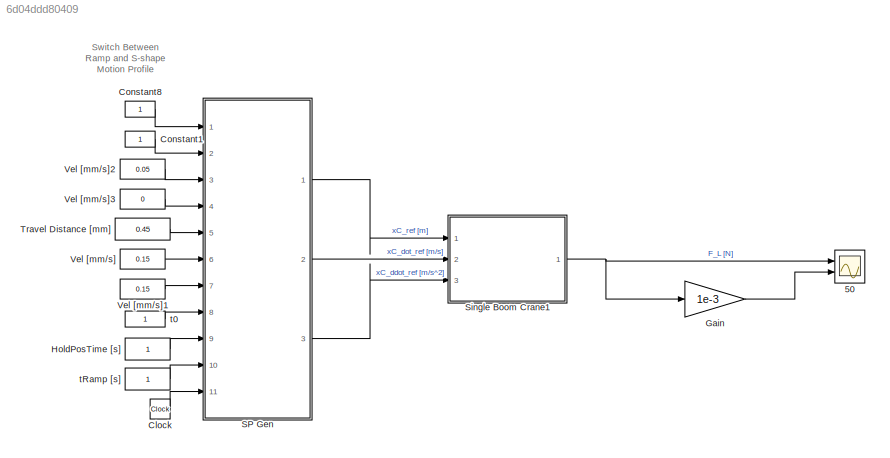
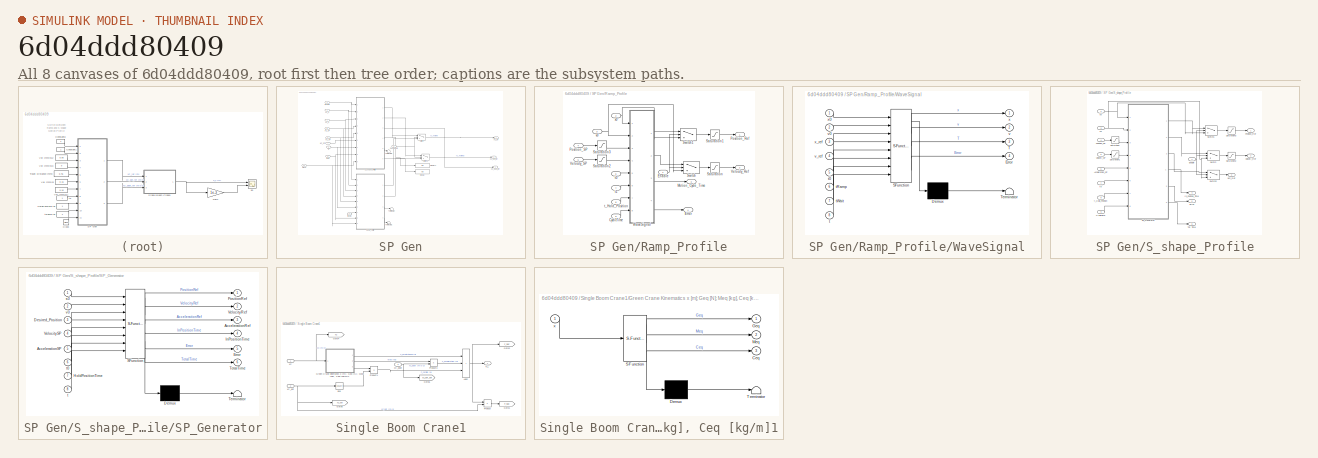
[diagram: thumbnail index - all 8 canvases of the model, root first then tree order]
MODEL slx_6d04ddd80409
KIND model
CONFIG AbsTol = auto
CONFIG EnableMultiTasking = on
CONFIG FixedStep = auto
CONFIG MaxStep = auto
CONFIG MinStep = auto
CONFIG RelTol = 1e-3
CONFIG SampleTimeConstraint = Unconstrained
CONFIG SolverName = ode23s
CONFIG StartTime = 0.0
CONFIG StopTime = 3
BLOCK [Scope] 50
  Floating = off
  NumInputPorts = 2
  Ports = [2]
  ScopeSpecificationString = Simulink.scopes.TimeScopeBlockCfg('CurrentConfiguration', extmgr.ConfigurationSet(extmgr.Configuration('Core','General UI',true,'FigureColor',[1 1 1]),extmgr.Configuration('Core','Source UI',true),extmgr.Configuration('Sources','WiredSimulink',true,'DataLoggingSaveFormat','StructureWithTime','DataLoggingDecimation','1','DataLoggingDecimateData',true),extmgr.Configuration('Visuals','Time Domain',tr...<+4093ch>
BLOCK [Clock] Clock
BLOCK [Constant] Constant1
  OutDataTypeStr = boolean
BLOCK [Constant] Constant8
  OutDataTypeStr = boolean
BLOCK [Gain] Gain
  Gain = 1e-3
  NameLocation = top
BLOCK [Constant] HoldPosTime [s]
BLOCK [SubSystem] SP Gen
  Ports = [11, 3]
  RequestExecContextInheritance = off
BLOCK [Inport] SP Gen/Clock
  Port = 11
BLOCK [Display] SP Gen/Display
  Decimation = 1
  Ports = [1]
BLOCK [Display] SP Gen/Display1
  Decimation = 1
  Ports = [1]
BLOCK [Inport] SP Gen/Enable
BLOCK [SubSystem] SP Gen/Ramp_Profile
  Ports = [9, 4]
  RequestExecContextInheritance = off
  TreatAsAtomicUnit = on
  VariantControl = Ramp_Profile
BLOCK [Inport] SP Gen/Ramp_Profile/CyclicTime
  Port = 9
BLOCK [Inport] SP Gen/Ramp_Profile/Enable
  OutDataTypeStr = boolean
BLOCK [Outport] SP Gen/Ramp_Profile/Error
  Port = 4
  VectorParamsAs1DForOutWhenUnconnected = off
BLOCK [Outport] SP Gen/Ramp_Profile/Motion_Cycle_Time
  Port = 3
  VectorParamsAs1DForOutWhenUnconnected = off
BLOCK [Outport] SP Gen/Ramp_Profile/Position_Ref
  VectorParamsAs1DForOutWhenUnconnected = off
BLOCK [Inport] SP Gen/Ramp_Profile/Position_SP
  Port = 4
BLOCK [Saturate] SP Gen/Ramp_Profile/Saturation
  LowerLimit = -150
  UpperLimit = 150
BLOCK [Saturate] SP Gen/Ramp_Profile/Saturation1
  LowerLimit = 0
  UpperLimit = 500
BLOCK [Saturate] SP Gen/Ramp_Profile/Saturation2
  LowerLimit = 0
  UpperLimit = 150
BLOCK [Saturate] SP Gen/Ramp_Profile/Saturation3
  LowerLimit = 0
  UpperLimit = 500
BLOCK [Switch] SP Gen/Ramp_Profile/Switch
  Criteria = u2 > Threshold
  InputSameDT = off
  SaturateOnIntegerOverflow = off
BLOCK [Switch] SP Gen/Ramp_Profile/Switch1
  Criteria = u2 > Threshold
  InputSameDT = off
  SaturateOnIntegerOverflow = off
BLOCK [Outport] SP Gen/Ramp_Profile/Velocity_Ref
  Port = 2
  VectorParamsAs1DForOutWhenUnconnected = off
BLOCK [Inport] SP Gen/Ramp_Profile/Velocity_SP
  Port = 5
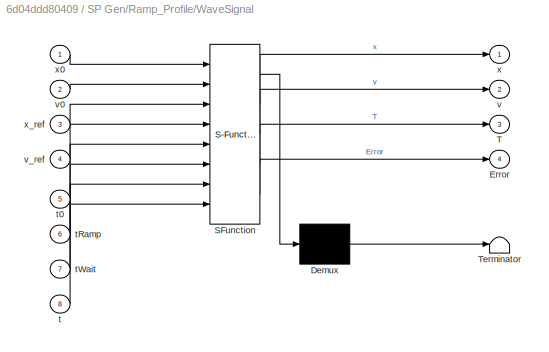
BLOCK [SubSystem] SP Gen/Ramp_Profile/WaveSignal
  ErrorFcn = Stateflow.Translate.translate
  PermitHierarchicalResolution = ExplicitOnly
  Ports = [8, 4]
  RequestExecContextInheritance = off
  SFBlockType = MATLAB Function
  TreatAsAtomicUnit = on
BLOCK [Demux] SP Gen/Ramp_Profile/WaveSignal/ Demux 
  Outputs = 1
  Ports = [1, 1]
BLOCK [S-Function] SP Gen/Ramp_Profile/WaveSignal/ SFunction 
  EnableBusSupport = off
  FunctionName = sf_sfun
  PortCounts = [8 5]
  Ports = [8, 5]
  SFcnIsStateOwnerBlock = off
  SFunctionDeploymentMode = off
  Tag = Stateflow S-Function 16
BLOCK [Terminator] SP Gen/Ramp_Profile/WaveSignal/ Terminator 
BLOCK [Outport] SP Gen/Ramp_Profile/WaveSignal/Error
  Port = 4
  VectorParamsAs1DForOutWhenUnconnected = off
BLOCK [Outport] SP Gen/Ramp_Profile/WaveSignal/T
  Port = 3
  VectorParamsAs1DForOutWhenUnconnected = off
BLOCK [Inport] SP Gen/Ramp_Profile/WaveSignal/t
  Port = 8
BLOCK [Inport] SP Gen/Ramp_Profile/WaveSignal/t0
  Port = 5
BLOCK [Inport] SP Gen/Ramp_Profile/WaveSignal/tRamp
  Port = 6
BLOCK [Inport] SP Gen/Ramp_Profile/WaveSignal/tWait
  Port = 7
BLOCK [Outport] SP Gen/Ramp_Profile/WaveSignal/v
  Port = 2
  VectorParamsAs1DForOutWhenUnconnected = off
BLOCK [Inport] SP Gen/Ramp_Profile/WaveSignal/v0
  Port = 2
BLOCK [Inport] SP Gen/Ramp_Profile/WaveSignal/v_ref
  Port = 4
BLOCK [Outport] SP Gen/Ramp_Profile/WaveSignal/x
  VectorParamsAs1DForOutWhenUnconnected = off
BLOCK [Inport] SP Gen/Ramp_Profile/WaveSignal/x0
BLOCK [Inport] SP Gen/Ramp_Profile/WaveSignal/x_ref
  Port = 3
BLOCK [Inport] SP Gen/Ramp_Profile/t0
  Port = 6
BLOCK [Inport] SP Gen/Ramp_Profile/t1
  Port = 7
BLOCK [Inport] SP Gen/Ramp_Profile/t_Hold_Position
  Port = 8
BLOCK [Inport] SP Gen/Ramp_Profile/v0
  Port = 3
BLOCK [Inport] SP Gen/Ramp_Profile/x0
  Port = 2
BLOCK [Inport] SP Gen/S-shape On
  Port = 2
BLOCK [SubSystem] SP Gen/S_shape_Profile
  Ports = [9, 6]
  RequestExecContextInheritance = off
  VariantControl = S_shape_Profile
BLOCK [Outport] SP Gen/S_shape_Profile/ In_Position_Time
  Port = 4
  VectorParamsAs1DForOutWhenUnconnected = off
BLOCK [Inport] SP Gen/S_shape_Profile/Acceleration_SP
  Port = 6
BLOCK [Inport] SP Gen/S_shape_Profile/CyclicTime
  Port = 9
BLOCK [Inport] SP Gen/S_shape_Profile/Enable
  OutDataTypeStr = boolean
BLOCK [Outport] SP Gen/S_shape_Profile/Error
  Port = 5
  VectorParamsAs1DForOutWhenUnconnected = off
BLOCK [Outport] SP Gen/S_shape_Profile/Position_Ref
  VectorParamsAs1DForOutWhenUnconnected = off
BLOCK [Inport] SP Gen/S_shape_Profile/Position_SP
  Port = 4
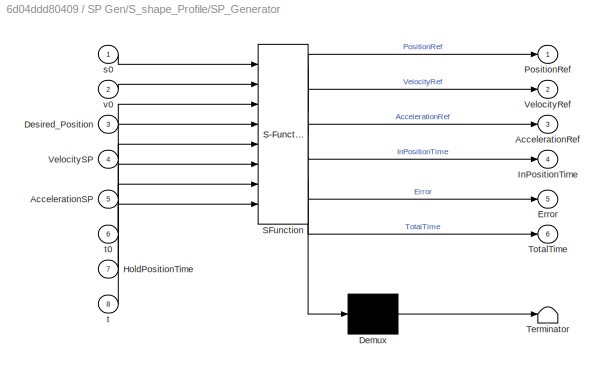
BLOCK [SubSystem] SP Gen/S_shape_Profile/SP_Generator
  ErrorFcn = Stateflow.Translate.translate
  PermitHierarchicalResolution = ExplicitOnly
  Ports = [8, 6]
  RequestExecContextInheritance = off
  SFBlockType = MATLAB Function
  TreatAsAtomicUnit = on
BLOCK [Demux] SP Gen/S_shape_Profile/SP_Generator/ Demux 
  Outputs = 1
  Ports = [1, 1]
BLOCK [S-Function] SP Gen/S_shape_Profile/SP_Generator/ SFunction 
  EnableBusSupport = off
  FunctionName = sf_sfun
  PortCounts = [8 7]
  Ports = [8, 7]
  SFcnIsStateOwnerBlock = off
  SFunctionDeploymentMode = off
  Tag = Stateflow S-Function 4
BLOCK [Terminator] SP Gen/S_shape_Profile/SP_Generator/ Terminator 
BLOCK [Outport] SP Gen/S_shape_Profile/SP_Generator/AccelerationRef
  Port = 3
  VectorParamsAs1DForOutWhenUnconnected = off
BLOCK [Inport] SP Gen/S_shape_Profile/SP_Generator/AccelerationSP
  Port = 5
BLOCK [Inport] SP Gen/S_shape_Profile/SP_Generator/Desired_Position
  Port = 3
BLOCK [Outport] SP Gen/S_shape_Profile/SP_Generator/Error
  Port = 5
  VectorParamsAs1DForOutWhenUnconnected = off
BLOCK [Inport] SP Gen/S_shape_Profile/SP_Generator/HoldPositionTime
  Port = 7
BLOCK [Outport] SP Gen/S_shape_Profile/SP_Generator/InPositionTime
  Port = 4
  VectorParamsAs1DForOutWhenUnconnected = off
BLOCK [Outport] SP Gen/S_shape_Profile/SP_Generator/PositionRef
  VectorParamsAs1DForOutWhenUnconnected = off
BLOCK [Outport] SP Gen/S_shape_Profile/SP_Generator/TotalTime
  Port = 6
  VectorParamsAs1DForOutWhenUnconnected = off
BLOCK [Outport] SP Gen/S_shape_Profile/SP_Generator/VelocityRef
  Port = 2
  VectorParamsAs1DForOutWhenUnconnected = off
BLOCK [Inport] SP Gen/S_shape_Profile/SP_Generator/VelocitySP
  Port = 4
BLOCK [Inport] SP Gen/S_shape_Profile/SP_Generator/s0
BLOCK [Inport] SP Gen/S_shape_Profile/SP_Generator/t
  Port = 8
BLOCK [Inport] SP Gen/S_shape_Profile/SP_Generator/t0
  Port = 6
BLOCK [Inport] SP Gen/S_shape_Profile/SP_Generator/v0
  Port = 2
BLOCK [Saturate] SP Gen/S_shape_Profile/Saturation
  LowerLimit = 0
  UpperLimit = 500
BLOCK [Saturate] SP Gen/S_shape_Profile/Saturation1
  LowerLimit = -150
  UpperLimit = 150
BLOCK [Saturate] SP Gen/S_shape_Profile/Saturation2
  LowerLimit = -150
  UpperLimit = 150
BLOCK [Saturate] SP Gen/S_shape_Profile/Saturation3
  LowerLimit = 0
  UpperLimit = 500
BLOCK [Switch] SP Gen/S_shape_Profile/Switch
  Criteria = u2 > Threshold
  InputSameDT = off
  SaturateOnIntegerOverflow = off
BLOCK [Switch] SP Gen/S_shape_Profile/Switch1
  Criteria = u2 > Threshold
  InputSameDT = off
  SaturateOnIntegerOverflow = off
BLOCK [Switch] SP Gen/S_shape_Profile/Switch2
  Criteria = u2 > Threshold
  InputSameDT = off
  SaturateOnIntegerOverflow = off
BLOCK [Outport] SP Gen/S_shape_Profile/Tot Time
  Port = 6
  VectorParamsAs1DForOutWhenUnconnected = off
BLOCK [Outport] SP Gen/S_shape_Profile/Velocity_Ref
  Port = 2
  VectorParamsAs1DForOutWhenUnconnected = off
BLOCK [Inport] SP Gen/S_shape_Profile/Velocity_SP
  Port = 5
BLOCK [Outport] SP Gen/S_shape_Profile/acc_Ref
  Port = 3
  VectorParamsAs1DForOutWhenUnconnected = off
BLOCK [Inport] SP Gen/S_shape_Profile/t0
  Port = 7
BLOCK [Inport] SP Gen/S_shape_Profile/t_Hold_Position
  Port = 8
BLOCK [Inport] SP Gen/S_shape_Profile/v0
  Port = 3
BLOCK [Inport] SP Gen/S_shape_Profile/x0
  Port = 2
BLOCK [Switch] SP Gen/Switch
  Criteria = u2 > Threshold
  InputSameDT = off
  SaturateOnIntegerOverflow = off
BLOCK [Switch] SP Gen/Switch1
  Criteria = u2 > Threshold
  InputSameDT = off
  SaturateOnIntegerOverflow = off
BLOCK [Terminator] SP Gen/Terminator
BLOCK [Terminator] SP Gen/Terminator1
BLOCK [Terminator] SP Gen/Terminator2
BLOCK [Inport] SP Gen/aC_SP
  Port = 7
BLOCK [Inport] SP Gen/t0
  Port = 8
BLOCK [Inport] SP Gen/tHold
  Port = 9
BLOCK [Inport] SP Gen/tRamp
  Port = 10
BLOCK [Inport] SP Gen/vC_0
  Port = 4
BLOCK [Inport] SP Gen/vC_SP
  Port = 6
BLOCK [Inport] SP Gen/xC_0
  Port = 3
BLOCK [Inport] SP Gen/xC_SP
  Port = 5
BLOCK [Outport] SP Gen/xC_ddot_ref 
  Port = 3
  VectorParamsAs1DForOutWhenUnconnected = off
BLOCK [Outport] SP Gen/xC_dot_ref
  Port = 2
  VectorParamsAs1DForOutWhenUnconnected = off
BLOCK [Outport] SP Gen/xC_ref
  VectorParamsAs1DForOutWhenUnconnected = off
BLOCK [SubSystem] Single Boom Crane1
  Ports = [3, 1]
  RequestExecContextInheritance = off
BLOCK [Sum] Single Boom Crane1/Add2
  IconShape = rectangular
  Inputs = +++
  Ports = [3, 1]
BLOCK [Math] Single Boom Crane1/Exp
  Operator = square
  Ports = [1, 1]
BLOCK [Outport] Single Boom Crane1/F_L
BLOCK [Goto] Single Boom Crane1/Goto1
  GotoTag = P_SBC
  TagVisibility = global
BLOCK [Goto] Single Boom Crane1/Goto2
  GotoTag = F_SBC
  TagVisibility = global
BLOCK [Goto] Single Boom Crane1/Goto4
  GotoTag = xC
  TagVisibility = global
BLOCK [Goto] Single Boom Crane1/Goto5
  GotoTag = xC_dot
  TagVisibility = global
BLOCK [Goto] Single Boom Crane1/Goto6
  GotoTag = xC_dot_dot
  TagVisibility = global
BLOCK [SubSystem] Single Boom Crane1/Green Crane Kinematics x [m]; Geq [N]; Meq [kg], Ceq [kg//m]1
  ErrorFcn = Stateflow.Translate.translate
  PermitHierarchicalResolution = ExplicitOnly
  Ports = [1, 3]
  RequestExecContextInheritance = off
  SFBlockType = MATLAB Function
  ShowPortLabels = SignalName
  TreatAsAtomicUnit = on
BLOCK [Demux] Single Boom Crane1/Green Crane Kinematics x [m]; Geq [N]; Meq [kg], Ceq [kg//m]1/ Demux 
  Outputs = 1
  Ports = [1, 1]
BLOCK [S-Function] Single Boom Crane1/Green Crane Kinematics x [m]; Geq [N]; Meq [kg], Ceq [kg//m]1/ SFunction 
  EnableBusSupport = off
  FunctionName = sf_sfun
  PortCounts = [1 4]
  Ports = [1, 4]
  SFcnIsStateOwnerBlock = off
  SFunctionDeploymentMode = off
  Tag = Stateflow S-Function 2
BLOCK [Terminator] Single Boom Crane1/Green Crane Kinematics x [m]; Geq [N]; Meq [kg], Ceq [kg//m]1/ Terminator 
BLOCK [Outport] Single Boom Crane1/Green Crane Kinematics x [m]; Geq [N]; Meq [kg], Ceq [kg//m]1/Ceq
  Port = 3
  VectorParamsAs1DForOutWhenUnconnected = off
BLOCK [Outport] Single Boom Crane1/Green Crane Kinematics x [m]; Geq [N]; Meq [kg], Ceq [kg//m]1/Geq
  VectorParamsAs1DForOutWhenUnconnected = off
BLOCK [Outport] Single Boom Crane1/Green Crane Kinematics x [m]; Geq [N]; Meq [kg], Ceq [kg//m]1/Meq
  Port = 2
  VectorParamsAs1DForOutWhenUnconnected = off
BLOCK [Inport] Single Boom Crane1/Green Crane Kinematics x [m]; Geq [N]; Meq [kg], Ceq [kg//m]1/x
BLOCK [Product] Single Boom Crane1/Product
  Ports = [2, 1]
BLOCK [Product] Single Boom Crane1/Product1
  Ports = [2, 1]
BLOCK [Product] Single Boom Crane1/Product3
  Ports = [2, 1]
BLOCK [Inport] Single Boom Crane1/xC
BLOCK [Inport] Single Boom Crane1/xC_ddot 
  Port = 3
BLOCK [Inport] Single Boom Crane1/xC_dot
  Port = 2
BLOCK [Constant] Travel Distance [mm]
  Value = 0.45
BLOCK [Constant] Vel [mm//s]
  Value = 0.15
BLOCK [Constant] Vel [mm//s]1
  Value = 0.15
BLOCK [Constant] Vel [mm//s]2
  Value = 0.05
BLOCK [Constant] Vel [mm//s]3
  Value = 0
BLOCK [Constant] t0
BLOCK [Constant] tRamp [s]
ANNOTATION (root): Switch Between Ramp and S-shape Motion Profile
LINE Clock:1 -> SP Gen:11
LINE Constant1:1 -> SP Gen:2
LINE Constant8:1 -> SP Gen:1
LINE Gain:1 -> 50:2
LINE HoldPosTime [s]:1 -> SP Gen:9
NET SP Gen/Clock:1 -> SP Gen/Ramp_Profile:9, SP Gen/S_shape_Profile:9
NET SP Gen/Enable:1 -> SP Gen/Ramp_Profile:1, SP Gen/S_shape_Profile:1
LINE SP Gen/Ramp_Profile/CyclicTime:1 -> SP Gen/Ramp_Profile/WaveSignal:8
NET SP Gen/Ramp_Profile/Enable:1 -> SP Gen/Ramp_Profile/Switch1:2, SP Gen/Ramp_Profile/Switch:2
LINE SP Gen/Ramp_Profile/Position_SP:1 -> SP Gen/Ramp_Profile/Saturation3:1
LINE SP Gen/Ramp_Profile/Saturation1:1 -> SP Gen/Ramp_Profile/Position_Ref:1
LINE SP Gen/Ramp_Profile/Saturation2:1 -> SP Gen/Ramp_Profile/WaveSignal:4
LINE SP Gen/Ramp_Profile/Saturation3:1 -> SP Gen/Ramp_Profile/WaveSignal:3
LINE SP Gen/Ramp_Profile/Saturation:1 -> SP Gen/Ramp_Profile/Velocity_Ref:1
LINE SP Gen/Ramp_Profile/Switch1:1 -> SP Gen/Ramp_Profile/Saturation1:1
LINE SP Gen/Ramp_Profile/Switch:1 -> SP Gen/Ramp_Profile/Saturation:1
LINE SP Gen/Ramp_Profile/Velocity_SP:1 -> SP Gen/Ramp_Profile/Saturation2:1
LINE SP Gen/Ramp_Profile/WaveSignal:1 -> SP Gen/Ramp_Profile/Switch1:1
LINE SP Gen/Ramp_Profile/WaveSignal:2 -> SP Gen/Ramp_Profile/Switch:1
LINE SP Gen/Ramp_Profile/WaveSignal:3 -> SP Gen/Ramp_Profile/Motion_Cycle_Time:1
LINE SP Gen/Ramp_Profile/WaveSignal:4 -> SP Gen/Ramp_Profile/Error:1
LINE SP Gen/Ramp_Profile/t0:1 -> SP Gen/Ramp_Profile/WaveSignal:5
LINE SP Gen/Ramp_Profile/t1:1 -> SP Gen/Ramp_Profile/WaveSignal:6
LINE SP Gen/Ramp_Profile/t_Hold_Position:1 -> SP Gen/Ramp_Profile/WaveSignal:7
NET SP Gen/Ramp_Profile/v0:1 -> SP Gen/Ramp_Profile/Switch:3, SP Gen/Ramp_Profile/WaveSignal:2
NET SP Gen/Ramp_Profile/x0:1 -> SP Gen/Ramp_Profile/Switch1:3, SP Gen/Ramp_Profile/WaveSignal:1
LINE SP Gen/Ramp_Profile:1 -> SP Gen/Switch:3
LINE SP Gen/Ramp_Profile:2 -> SP Gen/Switch1:3
LINE SP Gen/Ramp_Profile:3 -> SP Gen/Terminator:1
LINE SP Gen/Ramp_Profile:4 -> SP Gen/Terminator1:1
NET SP Gen/S-shape On:1 -> SP Gen/Switch1:2, SP Gen/Switch:2
LINE SP Gen/S_shape_Profile/Acceleration_SP:1 -> SP Gen/S_shape_Profile/SP_Generator:5
LINE SP Gen/S_shape_Profile/CyclicTime:1 -> SP Gen/S_shape_Profile/SP_Generator:8
NET SP Gen/S_shape_Profile/Enable:1 -> SP Gen/S_shape_Profile/Switch1:2, SP Gen/S_shape_Profile/Switch2:2, SP Gen/S_shape_Profile/Switch:2
LINE SP Gen/S_shape_Profile/Position_SP:1 -> SP Gen/S_shape_Profile/Saturation:1
LINE SP Gen/S_shape_Profile/SP_Generator:1 -> SP Gen/S_shape_Profile/Switch1:1
LINE SP Gen/S_shape_Profile/SP_Generator:2 -> SP Gen/S_shape_Profile/Switch:1
LINE SP Gen/S_shape_Profile/SP_Generator:3 -> SP Gen/S_shape_Profile/Switch2:1
LINE SP Gen/S_shape_Profile/SP_Generator:4 -> SP Gen/S_shape_Profile/ In_Position_Time:1
LINE SP Gen/S_shape_Profile/SP_Generator:5 -> SP Gen/S_shape_Profile/Error:1
LINE SP Gen/S_shape_Profile/SP_Generator:6 -> SP Gen/S_shape_Profile/Tot Time:1
LINE SP Gen/S_shape_Profile/Saturation1:1 -> SP Gen/S_shape_Profile/SP_Generator:4
LINE SP Gen/S_shape_Profile/Saturation2:1 -> SP Gen/S_shape_Profile/Velocity_Ref:1
LINE SP Gen/S_shape_Profile/Saturation3:1 -> SP Gen/S_shape_Profile/Position_Ref:1
LINE SP Gen/S_shape_Profile/Saturation:1 -> SP Gen/S_shape_Profile/SP_Generator:3
LINE SP Gen/S_shape_Profile/Switch1:1 -> SP Gen/S_shape_Profile/Saturation3:1
LINE SP Gen/S_shape_Profile/Switch2:1 -> SP Gen/S_shape_Profile/acc_Ref:1
LINE SP Gen/S_shape_Profile/Switch:1 -> SP Gen/S_shape_Profile/Saturation2:1
LINE SP Gen/S_shape_Profile/Velocity_SP:1 -> SP Gen/S_shape_Profile/Saturation1:1
LINE SP Gen/S_shape_Profile/t0:1 -> SP Gen/S_shape_Profile/SP_Generator:6
LINE SP Gen/S_shape_Profile/t_Hold_Position:1 -> SP Gen/S_shape_Profile/SP_Generator:7
NET SP Gen/S_shape_Profile/v0:1 -> SP Gen/S_shape_Profile/SP_Generator:2, SP Gen/S_shape_Profile/Switch2:3, SP Gen/S_shape_Profile/Switch:3
NET SP Gen/S_shape_Profile/x0:1 -> SP Gen/S_shape_Profile/SP_Generator:1, SP Gen/S_shape_Profile/Switch1:3
LINE SP Gen/S_shape_Profile:1 -> SP Gen/Switch:1
LINE SP Gen/S_shape_Profile:2 -> SP Gen/Switch1:1
LINE SP Gen/S_shape_Profile:3 -> SP Gen/xC_ddot_ref :1
LINE SP Gen/S_shape_Profile:4 -> SP Gen/Display1:1
LINE SP Gen/S_shape_Profile:5 -> SP Gen/Terminator2:1
LINE SP Gen/S_shape_Profile:6 -> SP Gen/Display:1
LINE SP Gen/Switch1:1 -> SP Gen/xC_dot_ref:1
LINE SP Gen/Switch:1 -> SP Gen/xC_ref:1
LINE SP Gen/aC_SP:1 -> SP Gen/S_shape_Profile:6
NET SP Gen/t0:1 -> SP Gen/Ramp_Profile:6, SP Gen/S_shape_Profile:7
NET SP Gen/tHold:1 -> SP Gen/Ramp_Profile:8, SP Gen/S_shape_Profile:8
LINE SP Gen/tRamp:1 -> SP Gen/Ramp_Profile:7
NET SP Gen/vC_0:1 -> SP Gen/Ramp_Profile:3, SP Gen/S_shape_Profile:3
NET SP Gen/vC_SP:1 -> SP Gen/Ramp_Profile:5, SP Gen/S_shape_Profile:5
NET SP Gen/xC_0:1 -> SP Gen/Ramp_Profile:2, SP Gen/S_shape_Profile:2
NET SP Gen/xC_SP:1 -> SP Gen/Ramp_Profile:4, SP Gen/S_shape_Profile:4
LINE SP Gen:1 -> Single Boom Crane1:1
LINE SP Gen:2 -> Single Boom Crane1:2
LINE SP Gen:3 -> Single Boom Crane1:3
NET Single Boom Crane1/Add2:1 -> Single Boom Crane1/F_L:1, Single Boom Crane1/Goto2:1, Single Boom Crane1/Product:1
LINE Single Boom Crane1/Exp:1 -> Single Boom Crane1/Product1:2
LINE Single Boom Crane1/Green Crane Kinematics x [m]; Geq [N]; Meq [kg], Ceq [kg//m]1:1 -> Single Boom Crane1/Add2:1
LINE Single Boom Crane1/Green Crane Kinematics x [m]; Geq [N]; Meq [kg], Ceq [kg//m]1:2 -> Single Boom Crane1/Product3:1
LINE Single Boom Crane1/Green Crane Kinematics x [m]; Geq [N]; Meq [kg], Ceq [kg//m]1:3 -> Single Boom Crane1/Product1:1
LINE Single Boom Crane1/Product1:1 -> Single Boom Crane1/Add2:3
LINE Single Boom Crane1/Product3:1 -> Single Boom Crane1/Add2:2
LINE Single Boom Crane1/Product:1 -> Single Boom Crane1/Goto1:1
NET Single Boom Crane1/xC:1 -> Single Boom Crane1/Goto4:1, Single Boom Crane1/Green Crane Kinematics x [m]; Geq [N]; Meq [kg], Ceq [kg//m]1:1
NET Single Boom Crane1/xC_ddot :1 -> Single Boom Crane1/Goto6:1, Single Boom Crane1/Product3:2
NET Single Boom Crane1/xC_dot:1 -> Single Boom Crane1/Exp:1, Single Boom Crane1/Goto5:1, Single Boom Crane1/Product:2
NET Single Boom Crane1:1 -> 50:1, Gain:1
LINE Travel Distance [mm]:1 -> SP Gen:5
LINE Vel [mm//s]1:1 -> SP Gen:7
LINE Vel [mm//s]2:1 -> SP Gen:3
LINE Vel [mm//s]3:1 -> SP Gen:4
LINE Vel [mm//s]:1 -> SP Gen:6
LINE t0:1 -> SP Gen:8
LINE tRamp [s]:1 -> SP Gen:10
note: NET lines group one-source signal fan-out (src -> all destinations, sorted); 1:1 wires keep LINE
CHART Single Boom Crane1/Green Crane Kinematics
x [m]; Geq [N]; Meq [kg], Ceq [kg//m]1 states=1 transitions=1
  STATE_LABEL 'eML_blk_kernel()'
  STATE_LABEL 'SCRIPT:\n\nfunction [Geq, Meq, Ceq]  = fcn(x)\n\n% Mechanical Model Green Crane @ UiA Laboratory \n\n% Parameters \nL_AGx = 3139/1000;            % [m]\nL_AGy = 64*(1/1000);          % [m]\nL_ACx = 550*(1/1000);         % [m]\nL_ACy = 130*(1/1000);         % [m]\nL_ABx = 420*(1/1000);         % [m]\nL_ABy = 1055*(1/1000);        % [m]\nL_AB = sqrt(L_ABx^2+L_ABy^2); % [m]\nL_AC = sqrt(L_ACx^2+L_ACy^2); % [m]\nL_A...<+1114ch>'
CHART SP Gen/S_shape_Profile/SP_Generator states=1 transitions=1
  STATE_LABEL 'eML_blk_kernel()'
  STATE_LABEL 'SCRIPT:\nfunction [PositionRef,VelocityRef,AccelerationRef, InPositionTime, Error, TotalTime] = fcn(s0,v0, Desired_Position,VelocitySP, AccelerationSP, t0,HoldPositionTime,t)\n\n\nPositionSP = Desired_Position - s0;\n\na0 = 0;\nj0 = 0;\n\n\nvel=VelocitySP;\nas=AccelerationSP;\n% Input velocity \nvs=vel; %[rad/s]\n% Delta velocity \ndv=(vs-v0); %[rad/s]     \n% Max Jerk Considerations\njm=as^2/dv; %%[rad/s^3] \n% Co...<+2639ch>'
CHART SP Gen/Ramp_Profile/WaveSignal states=1 transitions=1
  STATE_LABEL 'eML_blk_kernel()'
  STATE_LABEL 'SCRIPT:\nfunction [x,v,T, Error] = fcn(x0,v0, x_ref,v_ref,t0,tRamp,tWait,t)\nx_SP = x_ref - x0;\nvs=v_ref;\nslopeExt=v0-vs;\nslopeRetr=-vs-v0;\n\nas = vs/tRamp;\ns_acc=(vs^2-v0^2)/as;\n\ntHold=(x_SP-s_acc)/vs;\n\nif tHold < 0 \nError = 1;\nelse \nError = 0;\nend\n\nt1=tRamp;\nt2=tHold; \nt3=tRamp;\nt4=tWait;\nt5=t1;\nt6=t2;\nt7=t3;\n\nx = x0;\nx1 = x0 + v0*((t0+t1)-t0)-(slopeExt/t1)*((t0+t1)-t0)^2/2;\nx2 = x1 + vs*((t0+t1+t2...<+1188ch>'
CHART  states=0 transitions=0
CHART  states=0 transitions=0
CHART  states=0 transitions=0
